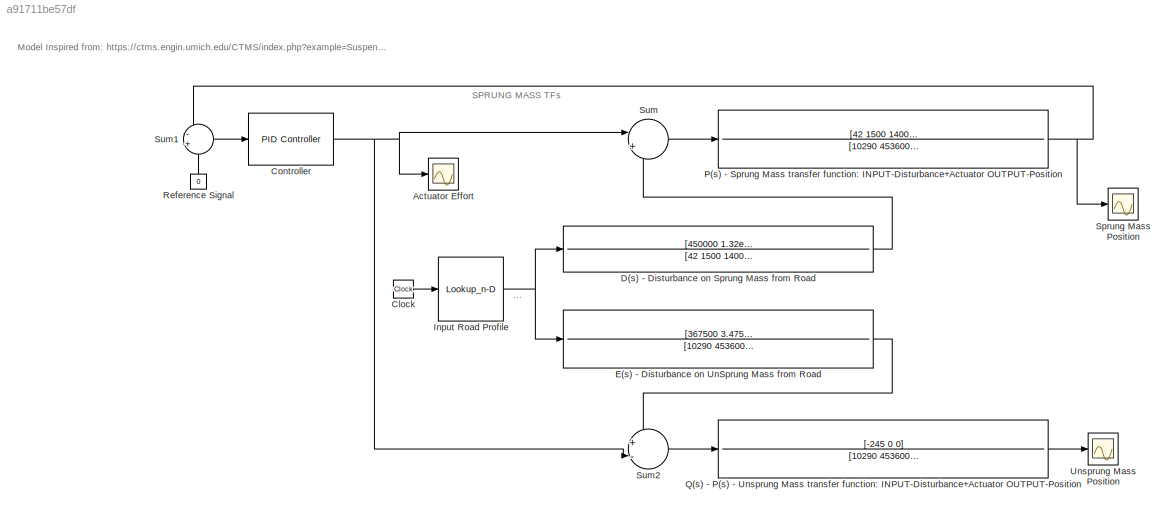
MODEL slx_a91711be57df
KIND model
CONFIG AbsTol = auto
CONFIG EnableMultiTasking = off
CONFIG FixedStep = 0.025
CONFIG MaxStep = 0.005
CONFIG MinStep = auto
CONFIG RelTol = 1e-4
CONFIG SampleTimeConstraint = Unconstrained
CONFIG SolverName = VariableStepAuto
CONFIG StartTime = 0.0
CONFIG StopTime = 5
BLOCK [Scope] Actuator Effort
  Floating = off
  NumInputPorts = 1
  Ports = [1]
  ScopeSpecificationString = Simulink.scopes.TimeScopeBlockCfg('CurrentConfiguration', extmgr.ConfigurationSet(extmgr.Configuration('Core','General UI',true),extmgr.Configuration('Core','Source UI',true),extmgr.Configuration('Sources','WiredSimulink',true,'DataLoggingVariableName','ScopeData2'),extmgr.Configuration('Visuals','Time Domain',true),extmgr.Configuration('Tools','Plot Navigation',true),extmgr.Configuration('Tools',...<+40ch>
BLOCK [Clock] Clock
  Decimation = 1
  NameLocation = top
BLOCK [Reference] Controller  REF=pid_lib/PID Controller
  Ports = [1, 1]
  SourceBlock = pid_lib/PID Controller
  SourceProductBaseCode = SL
  SourceType = PID 1dof
BLOCK [TransferFcn] D(s) - Disturbance on Sprung Mass from Road
  Denominator = [42 1500 140000]
  NameLocation = top
  Numerator = [450000 1.32e08 8.4e09]
  ParameterTunability = Optimized
BLOCK [TransferFcn] E(s) - Disturbance on UnSprung Mass from Road
  Denominator = [10290 453600 5.197e07 1.32e08 8.4e09]
  Numerator = [367500 3.475e07 1.32e08 8.4e09]
  ParameterTunability = Optimized
BLOCK [Lookup_n-D] Input Road Profile
  BreakpointsForDimension1 = [0	0.00500000000000000	0.0100000000000000	0.0150000000000000	0.0200000000000000	0.0250000000000000	0.0300000000000000	0.0350000000000000	0.0400000000000000	0.0450000000000000	0.0500000000000000	0.0550000000000000	0.0600000000000000	0.0650000000000000	0.0700000000000000	0.0750000000000000	0.0800000000000000	0.0850000000000000	0.0900000000000000	0.0950000000000000	0.100000000000000	0.105000000000000...<+16747ch>
  InputPortMap = u0
  InternalRulePriority = Speed
  NumberOfTableDimensions = 1
  Ports = [1, 1]
  RndMeth = Simplest
  Table = [0	0.0231184863129894	0.0418494805423212	0.0272166336529924	0.0290442508352740	0.0270289278870260	-0.00912204980590414	-0.0119257099632010	-0.0141588484112267	-0.0225665185978274	-0.0267857377610446	-0.0262696482052976	-0.0287196486304237	-0.0254145568344411	-0.00681801910652944	0.00788984432315124	0.0127544698926734	0.0123656606610697	0.0158737165838800	0.0282813460394589	0.0237348192073380	0.008...<+19469ch>
BLOCK [TransferFcn] P(s) - Sprung Mass transfer function: INPUT-Disturbance+Actuator OUTPUT-Position
  Denominator = [10290 453600 5.197e07 1.32e08 8.4e09]
  Numerator = [42 1500 140000]
  ParameterTunability = Optimized
BLOCK [TransferFcn] Q(s) - P(s) - Unsprung Mass transfer function: INPUT-Disturbance+Actuator OUTPUT-Position
  Denominator = [10290 453600 5.197e07  1.32e08 8.4e09]
  NameLocation = top
  Numerator = [-245 0 0]
  ParameterTunability = Optimized
BLOCK [Constant] Reference Signal
  Value = 0
BLOCK [Scope] Sprung Mass Position
  Floating = off
  NumInputPorts = 1
  Ports = [1]
  ScopeSpecificationString = Simulink.scopes.TimeScopeBlockCfg('CurrentConfiguration', extmgr.ConfigurationSet(extmgr.Configuration('Core','General UI',true),extmgr.Configuration('Core','Source UI',true),extmgr.Configuration('Sources','WiredSimulink',true,'DataLoggingVariableName','ScopeData1'),extmgr.Configuration('Visuals','Time Domain',true),extmgr.Configuration('Tools','Plot Navigation',true),extmgr.Configuration('Tools',...<+40ch>
BLOCK [Sum] Sum
  Inputs = |++
  Ports = [2, 1]
BLOCK [Sum] Sum1
  Inputs = -+
  Ports = [2, 1]
BLOCK [Sum] Sum2
  Inputs = +-|
  Ports = [2, 1]
BLOCK [Scope] Unsprung Mass Position
  Floating = off
  NumInputPorts = 1
  Ports = [1]
  ScopeSpecificationString = Simulink.scopes.TimeScopeBlockCfg('CurrentConfiguration', extmgr.ConfigurationSet(extmgr.Configuration('Core','General UI',true),extmgr.Configuration('Core','Source UI',true),extmgr.Configuration('Sources','WiredSimulink',true),extmgr.Configuration('Visuals','Time Domain',true),extmgr.Configuration('Tools','Plot Navigation',true),extmgr.Configuration('Tools','Measurements',true)),'Version','2021a'...<+1ch>
ANNOTATION (root): UNSPRUNG MASS TFs
ANNOTATION (root): Model Inspired from: https://ctms.engin.umich.edu/CTMS/index.php?example=Suspension&section=ControlPID
ANNOTATION (root): SPRUNG MASS TFs
LINE Clock:1 -> Input Road Profile:1
NET Controller:1 -> Actuator Effort:1, Sum2:2, Sum:1
LINE D(s) - Disturbance on Sprung Mass from Road:1 -> Sum:2
LINE E(s) - Disturbance on UnSprung Mass from Road:1 -> Sum2:1
NET Input Road Profile:1 -> D(s) - Disturbance on Sprung Mass from Road:1, E(s) - Disturbance on UnSprung Mass from Road:1
NET P(s) - Sprung Mass transfer function: INPUT-Disturbance+Actuator OUTPUT-Position:1 -> Sprung Mass Position:1, Sum1:1
LINE Q(s) - P(s) - Unsprung Mass transfer function: INPUT-Disturbance+Actuator OUTPUT-Position:1 -> Unsprung Mass Position:1
LINE Reference Signal:1 -> Sum1:2
LINE Sum1:1 -> Controller:1
LINE Sum2:1 -> Q(s) - P(s) - Unsprung Mass transfer function: INPUT-Disturbance+Actuator OUTPUT-Position:1
LINE Sum:1 -> P(s) - Sprung Mass transfer function: INPUT-Disturbance+Actuator OUTPUT-Position:1
note: NET lines group one-source signal fan-out (src -> all destinations, sorted); 1:1 wires keep LINE
